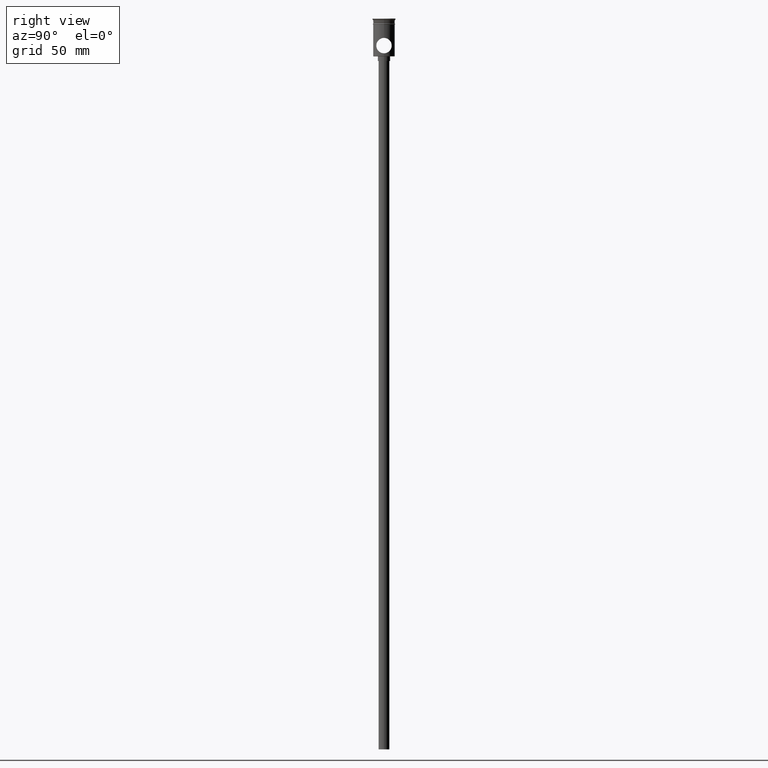
[diagram: clean part render]
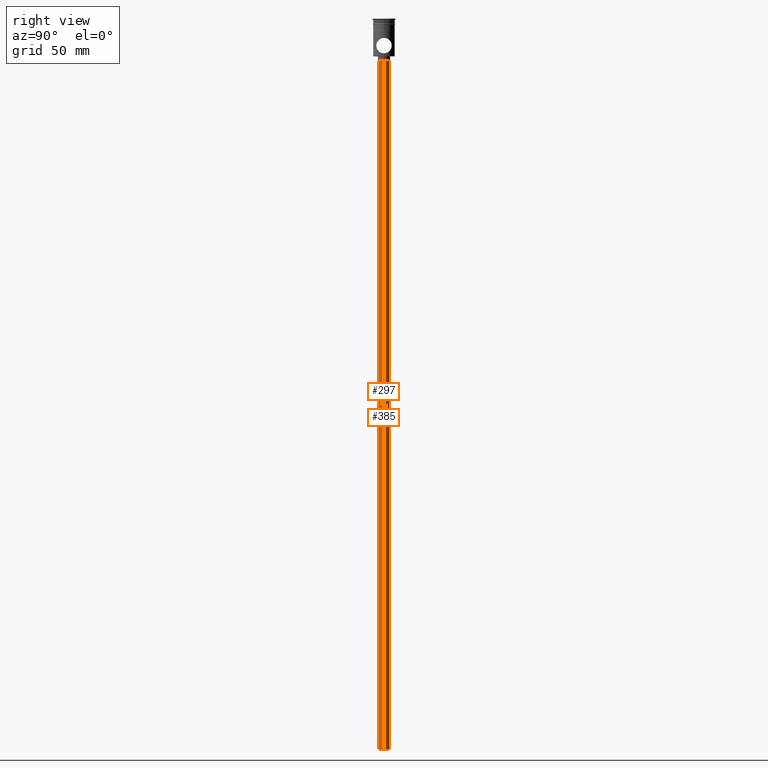
[diagram: same view with one multi-face feature highlighted, each face labeled with its STEP entity id]
A machine part, right view. The highlighted faces form ONE feature: a constant-radius fillet chain: 2 tangent blend faces with common blend radius 3.5 mm. The faces share edges in the B-rep.
Their STEP definitions:
[1] entity #297 (Cylinder):
#10 = VECTOR ( 'NONE', #1428, 1000.000000000000000 ) ;
#11 = DIRECTION ( 'NONE',  ( 0.000000000000000000, 0.000000000000000000, -1.000000000000000000 ) ) ;
#13 = AXIS2_PLACEMENT_3D ( 'NONE', #1149, #11, #936 ) ;
#58 = CIRCLE ( 'NONE', #13, 3.500000000000000444 ) ;
#71 = EDGE_CURVE ( 'NONE', #895, #154, #1202, .T. ) ;
#112 = CARTESIAN_POINT ( 'NONE',  ( -3.500000000000000444, 4.286263797015737088E-16, -27.50000000000000000 ) ) ;
#154 = VERTEX_POINT ( 'NONE', #112 ) ;
#170 = CARTESIAN_POINT ( 'NONE',  ( 3.500000000000000444, 0.000000000000000000, -474.5000000000000568 ) ) ;
#297 = ADVANCED_FACE ( 'NONE', ( #1010 ), #648, .T. ) ;
#325 = LINE ( 'NONE', #1417, #684 ) ;
#585 = DIRECTION ( 'NONE',  ( -0.000000000000000000, -0.000000000000000000, 1.000000000000000000 ) ) ;
#603 = EDGE_CURVE ( 'NONE', #614, #154, #58, .T. ) ;
#614 = VERTEX_POINT ( 'NONE', #886 ) ;
#648 = CYLINDRICAL_SURFACE ( 'NONE', #1209, 3.500000000000000444 ) ;
#666 = ORIENTED_EDGE ( 'NONE', *, *, #1161, .T. ) ;
#684 = VECTOR ( 'NONE', #585, 1000.000000000000000 ) ;
#727 = DIRECTION ( 'NONE',  ( -1.000000000000000000, 0.000000000000000000, 0.000000000000000000 ) ) ;
#745 = EDGE_CURVE ( 'NONE', #788, #895, #1459, .T. ) ;
#788 = VERTEX_POINT ( 'NONE', #170 ) ;
#823 = ORIENTED_EDGE ( 'NONE', *, *, #71, .F. ) ;
#861 = EDGE_LOOP ( 'NONE', ( #823, #1190, #666, #1015 ) ) ;
#886 = CARTESIAN_POINT ( 'NONE',  ( 3.500000000000000444, 0.000000000000000000, -27.50000000000000000 ) ) ;
#895 = VERTEX_POINT ( 'NONE', #1185 ) ;
#936 = DIRECTION ( 'NONE',  ( -1.000000000000000000, 0.000000000000000000, 0.000000000000000000 ) ) ;
#939 = DIRECTION ( 'NONE',  ( 0.000000000000000000, 0.000000000000000000, -1.000000000000000000 ) ) ;
#990 = DIRECTION ( 'NONE',  ( 1.000000000000000000, 0.000000000000000000, 0.000000000000000000 ) ) ;
#1010 = FACE_OUTER_BOUND ( 'NONE', #861, .T. ) ;
#1015 = ORIENTED_EDGE ( 'NONE', *, *, #603, .T. ) ;
#1076 = AXIS2_PLACEMENT_3D ( 'NONE', #1206, #939, #727 ) ;
#1084 = CARTESIAN_POINT ( 'NONE',  ( -3.500000000000000444, 4.286263797015737088E-16, -474.5000000000000568 ) ) ;
#1149 = CARTESIAN_POINT ( 'NONE',  ( 0.000000000000000000, 0.000000000000000000, -27.50000000000000000 ) ) ;
#1161 = EDGE_CURVE ( 'NONE', #788, #614, #325, .T. ) ;
#1185 = CARTESIAN_POINT ( 'NONE',  ( -3.500000000000000444, 4.286263797015737088E-16, -474.5000000000000568 ) ) ;
#1190 = ORIENTED_EDGE ( 'NONE', *, *, #745, .F. ) ;
#1202 = LINE ( 'NONE', #1084, #10 ) ;
#1206 = CARTESIAN_POINT ( 'NONE',  ( 0.000000000000000000, 0.000000000000000000, -474.5000000000000568 ) ) ;
#1209 = AXIS2_PLACEMENT_3D ( 'NONE', #1231, #1442, #990 ) ;
#1231 = CARTESIAN_POINT ( 'NONE',  ( 0.000000000000000000, 0.000000000000000000, -474.5000000000000568 ) ) ;
#1417 = CARTESIAN_POINT ( 'NONE',  ( 3.500000000000000444, 0.000000000000000000, -474.5000000000000568 ) ) ;
#1428 = DIRECTION ( 'NONE',  ( -0.000000000000000000, -0.000000000000000000, 1.000000000000000000 ) ) ;
#1442 = DIRECTION ( 'NONE',  ( -0.000000000000000000, -0.000000000000000000, 1.000000000000000000 ) ) ;
#1459 = CIRCLE ( 'NONE', #1076, 3.500000000000000444 ) ;
[2] entity #385 (Cylinder):
#10 = VECTOR ( 'NONE', #1428, 1000.000000000000000 ) ;
#71 = EDGE_CURVE ( 'NONE', #895, #154, #1202, .T. ) ;
#99 = CYLINDRICAL_SURFACE ( 'NONE', #270, 3.500000000000000444 ) ;
#112 = CARTESIAN_POINT ( 'NONE',  ( -3.500000000000000444, 4.286263797015737088E-16, -27.50000000000000000 ) ) ;
#120 = DIRECTION ( 'NONE',  ( 1.000000000000000000, 0.000000000000000000, 0.000000000000000000 ) ) ;
#154 = VERTEX_POINT ( 'NONE', #112 ) ;
#158 = ORIENTED_EDGE ( 'NONE', *, *, #221, .F. ) ;
#170 = CARTESIAN_POINT ( 'NONE',  ( 3.500000000000000444, 0.000000000000000000, -474.5000000000000568 ) ) ;
#221 = EDGE_CURVE ( 'NONE', #895, #788, #501, .T. ) ;
#243 = CARTESIAN_POINT ( 'NONE',  ( 0.000000000000000000, 0.000000000000000000, -474.5000000000000568 ) ) ;
#270 = AXIS2_PLACEMENT_3D ( 'NONE', #243, #1269, #120 ) ;
#325 = LINE ( 'NONE', #1417, #684 ) ;
#354 = FACE_OUTER_BOUND ( 'NONE', #1291, .T. ) ;
#361 = EDGE_CURVE ( 'NONE', #154, #614, #929, .T. ) ;
#385 = ADVANCED_FACE ( 'NONE', ( #354 ), #99, .T. ) ;
#501 = CIRCLE ( 'NONE', #796, 3.500000000000000444 ) ;
#516 = CARTESIAN_POINT ( 'NONE',  ( 0.000000000000000000, 0.000000000000000000, -474.5000000000000568 ) ) ;
#523 = DIRECTION ( 'NONE',  ( -1.000000000000000000, 0.000000000000000000, 0.000000000000000000 ) ) ;
#585 = DIRECTION ( 'NONE',  ( -0.000000000000000000, -0.000000000000000000, 1.000000000000000000 ) ) ;
#600 = ORIENTED_EDGE ( 'NONE', *, *, #361, .T. ) ;
#614 = VERTEX_POINT ( 'NONE', #886 ) ;
#684 = VECTOR ( 'NONE', #585, 1000.000000000000000 ) ;
#778 = ORIENTED_EDGE ( 'NONE', *, *, #1161, .F. ) ;
#788 = VERTEX_POINT ( 'NONE', #170 ) ;
#796 = AXIS2_PLACEMENT_3D ( 'NONE', #516, #1106, #523 ) ;
#886 = CARTESIAN_POINT ( 'NONE',  ( 3.500000000000000444, 0.000000000000000000, -27.50000000000000000 ) ) ;
#895 = VERTEX_POINT ( 'NONE', #1185 ) ;
#929 = CIRCLE ( 'NONE', #1412, 3.500000000000000444 ) ;
#933 = DIRECTION ( 'NONE',  ( -1.000000000000000000, 0.000000000000000000, 0.000000000000000000 ) ) ;
#1024 = ORIENTED_EDGE ( 'NONE', *, *, #71, .T. ) ;
#1084 = CARTESIAN_POINT ( 'NONE',  ( -3.500000000000000444, 4.286263797015737088E-16, -474.5000000000000568 ) ) ;
#1106 = DIRECTION ( 'NONE',  ( 0.000000000000000000, 0.000000000000000000, -1.000000000000000000 ) ) ;
#1161 = EDGE_CURVE ( 'NONE', #788, #614, #325, .T. ) ;
#1185 = CARTESIAN_POINT ( 'NONE',  ( -3.500000000000000444, 4.286263797015737088E-16, -474.5000000000000568 ) ) ;
#1202 = LINE ( 'NONE', #1084, #10 ) ;
#1269 = DIRECTION ( 'NONE',  ( -0.000000000000000000, -0.000000000000000000, 1.000000000000000000 ) ) ;
#1291 = EDGE_LOOP ( 'NONE', ( #158, #1024, #600, #778 ) ) ;
#1366 = DIRECTION ( 'NONE',  ( 0.000000000000000000, 0.000000000000000000, -1.000000000000000000 ) ) ;
#1412 = AXIS2_PLACEMENT_3D ( 'NONE', #1495, #1366, #933 ) ;
#1417 = CARTESIAN_POINT ( 'NONE',  ( 3.500000000000000444, 0.000000000000000000, -474.5000000000000568 ) ) ;
#1428 = DIRECTION ( 'NONE',  ( -0.000000000000000000, -0.000000000000000000, 1.000000000000000000 ) ) ;
#1495 = CARTESIAN_POINT ( 'NONE',  ( 0.000000000000000000, 0.000000000000000000, -27.50000000000000000 ) ) ;